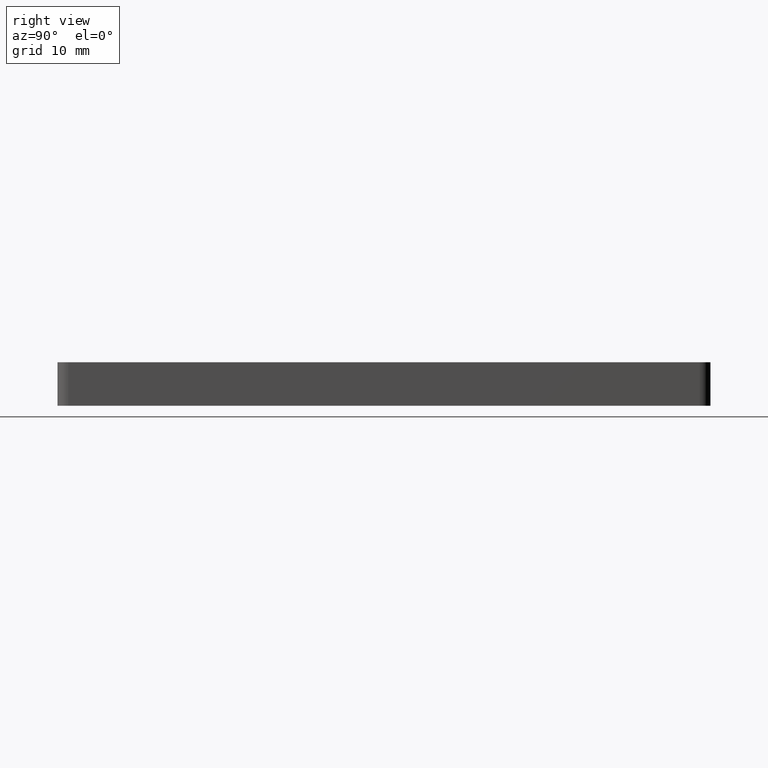
[diagram: clean part render]
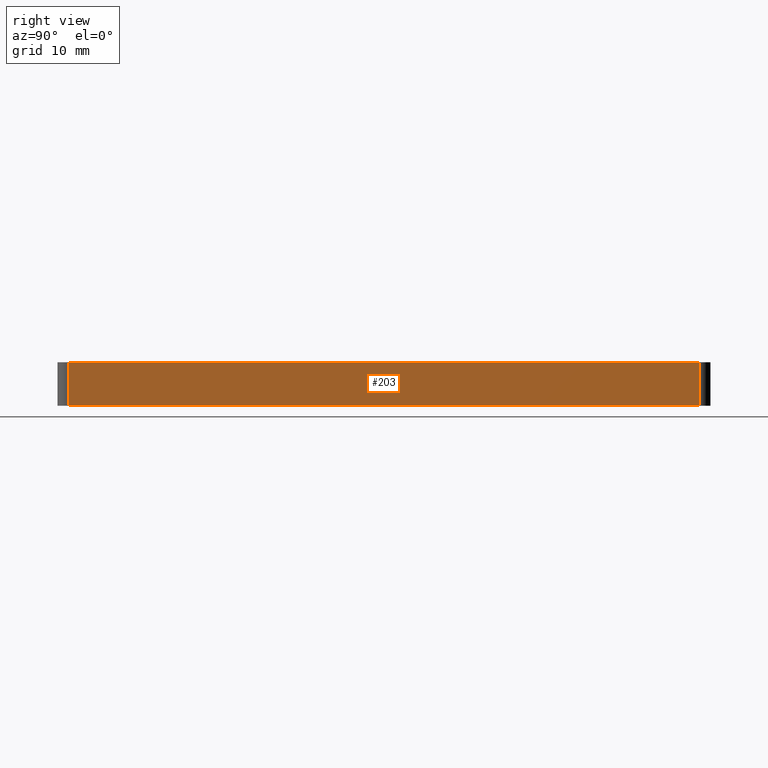
[diagram: same view with one face highlighted and labeled with its STEP entity id]
A machine part, right view. The second image highlights one B-rep face of the part: STEP entity #203.
In plain terms, the highlighted planar face has unit normal (-1, 0, 0).
Its self-contained STEP definition (entity closure, byte-faithful):
#164=CARTESIAN_POINT('',(15.000000000000007,-1.899999999999999,-0.200000000000000));
#165=DIRECTION('',(-1.0,0.0,0.0));
#166=DIRECTION('',(0.0,0.0,1.0));
#167=AXIS2_PLACEMENT_3D('',#164,#165,#166);
#168=PLANE('',#167);
#169=CARTESIAN_POINT('',(15.000000000000007,1.0,4.0));
#170=VERTEX_POINT('',#169);
#171=CARTESIAN_POINT('',(15.000000000000007,58.999999999999979,4.0));
#172=VERTEX_POINT('',#171);
#173=CARTESIAN_POINT('',(15.000000000000007,1.0,4.0));
#174=DIRECTION('',(0.0,1.0,0.0));
#175=VECTOR('',#174,57.999999999999979);
#176=LINE('',#173,#175);
#177=EDGE_CURVE('',#170,#172,#176,.T.);
#178=ORIENTED_EDGE('',*,*,#177,.F.);
#179=CARTESIAN_POINT('',(15.000000000000007,1.0,0.0));
#180=VERTEX_POINT('',#179);
#181=CARTESIAN_POINT('',(15.000000000000007,1.0,4.0));
#182=DIRECTION('',(0.0,0.0,-1.0));
#183=VECTOR('',#182,4.0);
#184=LINE('',#181,#183);
#185=EDGE_CURVE('',#170,#180,#184,.T.);
#186=ORIENTED_EDGE('',*,*,#185,.T.);
#187=CARTESIAN_POINT('',(15.000000000000007,58.999999999999979,0.0));
#188=VERTEX_POINT('',#187);
#189=CARTESIAN_POINT('',(15.000000000000007,1.0,0.0));
#190=DIRECTION('',(0.0,1.0,0.0));
#191=VECTOR('',#190,57.999999999999979);
#192=LINE('',#189,#191);
#193=EDGE_CURVE('',#180,#188,#192,.T.);
#194=ORIENTED_EDGE('',*,*,#193,.T.);
#195=CARTESIAN_POINT('',(15.000000000000007,58.999999999999979,0.0));
#196=DIRECTION('',(0.0,0.0,1.0));
#197=VECTOR('',#196,4.0);
#198=LINE('',#195,#197);
#199=EDGE_CURVE('',#188,#172,#198,.T.);
#200=ORIENTED_EDGE('',*,*,#199,.T.);
#201=EDGE_LOOP('',(#178,#186,#194,#200));
#202=FACE_OUTER_BOUND('',#201,.T.);
#203=ADVANCED_FACE('',(#202),#168,.F.);